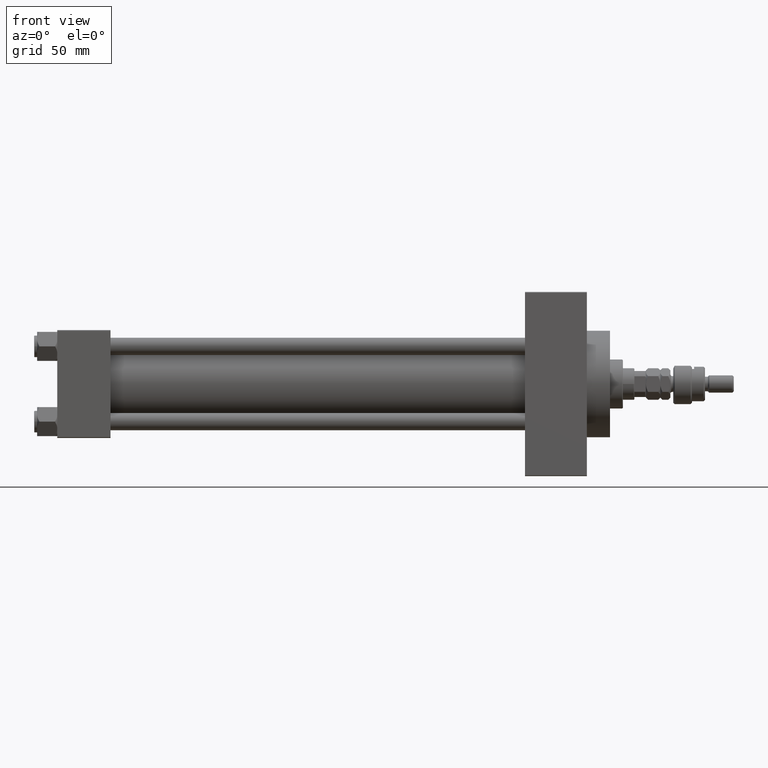
[diagram: clean part render]
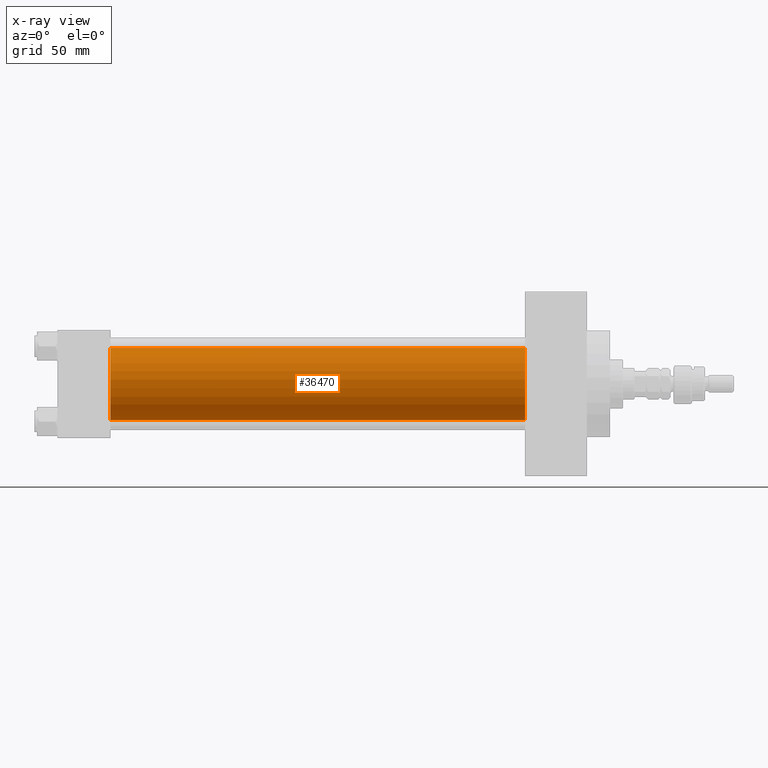
[diagram: x-ray — body ghosted, one internal face saturated and labeled with its STEP entity id]
A machine part, front view, then the same camera in x-ray: the body is ghosted and one INTERNAL B-rep face — a face not visible from any outside direction — is saturated and labeled: STEP entity #36470.
In plain terms, the highlighted cylindrical surface (edge-blend (fillet) strip) has radius 25 mm, axis along (-1, -0, -0).
Its self-contained STEP definition (entity closure, byte-faithful):
#587 = FACE_OUTER_BOUND ( 'NONE', #32198, .T. ) ;
#1665 = ORIENTED_EDGE ( 'NONE', *, *, #4656, .F. ) ;
#2101 = CARTESIAN_POINT ( 'NONE',  ( 324.9999999999999432, -2.602085213965210642E-15, 25.00000000000000000 ) ) ;
#4656 = EDGE_CURVE ( 'NONE', #28528, #26430, #21863, .T. ) ;
#4712 = ORIENTED_EDGE ( 'NONE', *, *, #45376, .F. ) ;
#5641 = VECTOR ( 'NONE', #47743, 1000.000000000000000 ) ;
#9254 = DIRECTION ( 'NONE',  ( 1.000000000000000000, 0.000000000000000000, 0.000000000000000000 ) ) ;
#13127 = EDGE_CURVE ( 'NONE', #37058, #26908, #20648, .T. ) ;
#14618 = AXIS2_PLACEMENT_3D ( 'NONE', #47723, #9254, #43916 ) ;
#14729 = ORIENTED_EDGE ( 'NONE', *, *, #13127, .T. ) ;
#18075 = CARTESIAN_POINT ( 'NONE',  ( 324.9999999999999432, -2.602085213965210642E-15, 25.00000000000000000 ) ) ;
#20648 = LINE ( 'NONE', #32294, #5641 ) ;
#21863 = LINE ( 'NONE', #18075, #47261 ) ;
#22789 = AXIS2_PLACEMENT_3D ( 'NONE', #22825, #46873, #26875 ) ;
#22825 = CARTESIAN_POINT ( 'NONE',  ( 324.9999999999999432, -2.602085213965210642E-15, 0.000000000000000000 ) ) ;
#25073 = CIRCLE ( 'NONE', #14618, 25.00000000000000000 ) ;
#26256 = CARTESIAN_POINT ( 'NONE',  ( 37.00000000000000000, -2.602085213965210642E-15, 0.000000000000000000 ) ) ;
#26430 = VERTEX_POINT ( 'NONE', #38933 ) ;
#26875 = DIRECTION ( 'NONE',  ( 0.000000000000000000, 0.000000000000000000, 1.000000000000000000 ) ) ;
#26908 = VERTEX_POINT ( 'NONE', #47981 ) ;
#28528 = VERTEX_POINT ( 'NONE', #2101 ) ;
#29360 = EDGE_CURVE ( 'NONE', #28528, #37058, #25073, .T. ) ;
#30558 = DIRECTION ( 'NONE',  ( 0.000000000000000000, 0.000000000000000000, -1.000000000000000000 ) ) ;
#30692 = CIRCLE ( 'NONE', #49297, 25.00000000000000000 ) ;
#31167 = CYLINDRICAL_SURFACE ( 'NONE', #22789, 25.00000000000000000 ) ;
#32198 = EDGE_LOOP ( 'NONE', ( #42256, #14729, #4712, #1665 ) ) ;
#32294 = CARTESIAN_POINT ( 'NONE',  ( 324.9999999999999432, 4.595317839031724996E-16, -25.00000000000000000 ) ) ;
#33501 = DIRECTION ( 'NONE',  ( -1.000000000000000000, -0.000000000000000000, -0.000000000000000000 ) ) ;
#34345 = DIRECTION ( 'NONE',  ( 1.000000000000000000, 0.000000000000000000, 0.000000000000000000 ) ) ;
#36470 = ADVANCED_FACE ( 'NONE', ( #587 ), #31167, .F. ) ;
#37058 = VERTEX_POINT ( 'NONE', #44778 ) ;
#38933 = CARTESIAN_POINT ( 'NONE',  ( 37.00000000000000000, -2.602085213965210642E-15, 25.00000000000000000 ) ) ;
#42256 = ORIENTED_EDGE ( 'NONE', *, *, #29360, .T. ) ;
#43916 = DIRECTION ( 'NONE',  ( 0.000000000000000000, 0.000000000000000000, -1.000000000000000000 ) ) ;
#44778 = CARTESIAN_POINT ( 'NONE',  ( 324.9999999999999432, 4.595317839031724996E-16, -25.00000000000000000 ) ) ;
#45376 = EDGE_CURVE ( 'NONE', #26430, #26908, #30692, .T. ) ;
#46873 = DIRECTION ( 'NONE',  ( -1.000000000000000000, -0.000000000000000000, -0.000000000000000000 ) ) ;
#47261 = VECTOR ( 'NONE', #33501, 1000.000000000000000 ) ;
#47723 = CARTESIAN_POINT ( 'NONE',  ( 324.9999999999999432, -2.602085213965210642E-15, 0.000000000000000000 ) ) ;
#47743 = DIRECTION ( 'NONE',  ( -1.000000000000000000, -0.000000000000000000, -0.000000000000000000 ) ) ;
#47981 = CARTESIAN_POINT ( 'NONE',  ( 37.00000000000000000, 4.595317839031724996E-16, -25.00000000000000000 ) ) ;
#49297 = AXIS2_PLACEMENT_3D ( 'NONE', #26256, #34345, #30558 ) ;